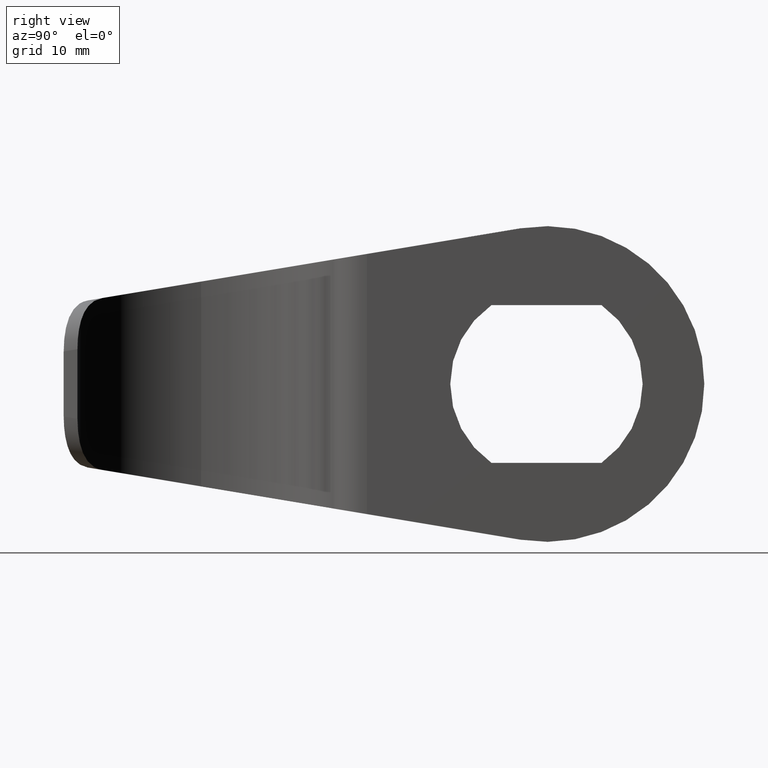
[diagram: clean part render]
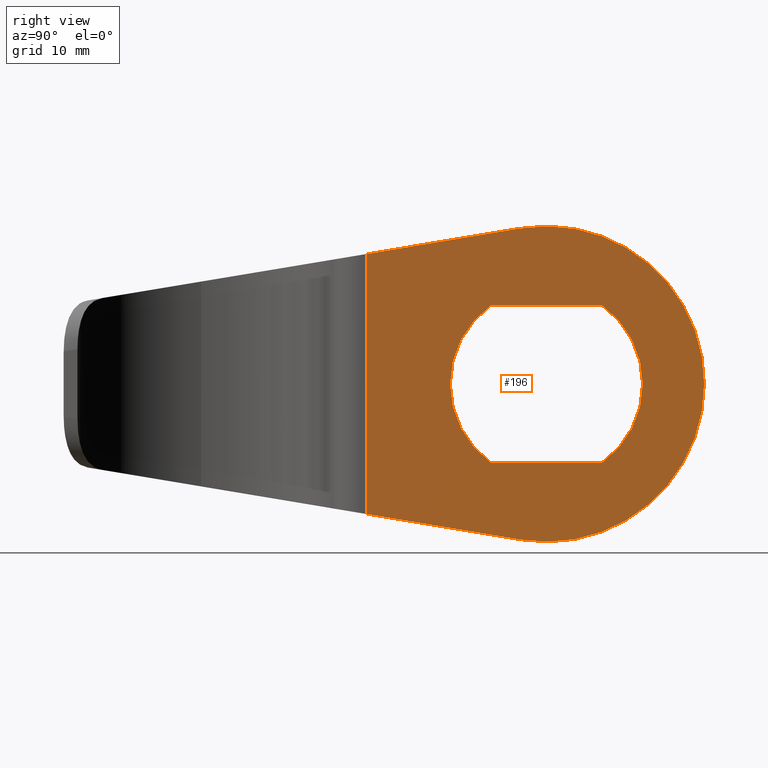
[diagram: same view with one face highlighted and labeled with its STEP entity id]
A machine part, right view. The second image highlights one B-rep face of the part: STEP entity #196.
In plain terms, the highlighted planar face has unit normal (-1, 0, 0).
Its self-contained STEP definition (entity closure, byte-faithful):
#3 = DIRECTION ( 'NONE',  ( 1.000000000000000000, 0.0000000000000000000, -0.0000000000000000000 ) ) ;
#24 = CARTESIAN_POINT ( 'NONE',  ( 1.001206748977360400, 40.57333792524997300, -8.000000000000000000 ) ) ;
#31 = CARTESIAN_POINT ( 'NONE',  ( 1.001206748977360400, 34.99996372284798700, 0.0000000000000000000 ) ) ;
#37 = CARTESIAN_POINT ( 'NONE',  ( 1.001206748977360400, 32.36721305702062100, 15.78190812074337000 ) ) ;
#39 = AXIS2_PLACEMENT_3D ( 'NONE', #31, #389, #726 ) ;
#48 = DIRECTION ( 'NONE',  ( -0.0000000000000000000, -0.0000000000000000000, -1.000000000000000000 ) ) ;
#53 = EDGE_CURVE ( 'NONE', #220, #263, #595, .T. ) ;
#65 = CARTESIAN_POINT ( 'NONE',  ( 1.001206748977360400, 40.57333792524997300, -8.000000000000000000 ) ) ;
#68 = PLANE ( 'NONE',  #125 ) ;
#80 = FACE_BOUND ( 'NONE', #462, .T. ) ;
#86 = ORIENTED_EDGE ( 'NONE', *, *, #643, .T. ) ;
#89 = DIRECTION ( 'NONE',  ( 0.0000000000000000000, 0.9863692575464607600, -0.1645469166142101700 ) ) ;
#92 = EDGE_LOOP ( 'NONE', ( #554, #86, #100, #399, #557 ) ) ;
#100 = ORIENTED_EDGE ( 'NONE', *, *, #397, .T. ) ;
#115 = CARTESIAN_POINT ( 'NONE',  ( 1.001206748977360400, 50.99996372284798700, 0.0000000000000000000 ) ) ;
#121 = CARTESIAN_POINT ( 'NONE',  ( 1.001206748977360400, 29.42658952044599400, 8.000000000000000000 ) ) ;
#125 = AXIS2_PLACEMENT_3D ( 'NONE', #528, #696, #641 ) ;
#134 = DIRECTION ( 'NONE',  ( 0.0000000000000000000, 1.734723475976807100E-015, 1.000000000000000000 ) ) ;
#154 = CARTESIAN_POINT ( 'NONE',  ( 1.001206748977360400, 16.81535115381116800, 13.18753395082193900 ) ) ;
#184 = EDGE_CURVE ( 'NONE', #263, #267, #539, .T. ) ;
#192 = CARTESIAN_POINT ( 'NONE',  ( 1.001206748977360400, 16.81535115381116800, -13.18753395082193900 ) ) ;
#196 = ADVANCED_FACE ( 'NONE', ( #80, #404 ), #68, .F. ) ;
#211 = AXIS2_PLACEMENT_3D ( 'NONE', #350, #409, #368 ) ;
#220 = VERTEX_POINT ( 'NONE', #531 ) ;
#249 = EDGE_CURVE ( 'NONE', #514, #220, #661, .T. ) ;
#252 = ORIENTED_EDGE ( 'NONE', *, *, #184, .F. ) ;
#254 = CARTESIAN_POINT ( 'NONE',  ( 1.001206748977360400, 40.57333792524997300, 8.000000000000000000 ) ) ;
#255 = CARTESIAN_POINT ( 'NONE',  ( 1.001206748977360400, 34.99996372284798700, 0.0000000000000000000 ) ) ;
#263 = VERTEX_POINT ( 'NONE', #65 ) ;
#267 = VERTEX_POINT ( 'NONE', #254 ) ;
#269 = VECTOR ( 'NONE', #89, 1000.000000000000000 ) ;
#270 = VERTEX_POINT ( 'NONE', #347 ) ;
#287 = ORIENTED_EDGE ( 'NONE', *, *, #407, .F. ) ;
#293 = CARTESIAN_POINT ( 'NONE',  ( 1.001206748977360400, 16.81535115381116400, 16.00000000000000000 ) ) ;
#315 = EDGE_CURVE ( 'NONE', #589, #323, #351, .T. ) ;
#323 = VERTEX_POINT ( 'NONE', #37 ) ;
#324 = EDGE_CURVE ( 'NONE', #589, #741, #492, .T. ) ;
#347 = CARTESIAN_POINT ( 'NONE',  ( 1.001206748977360400, 32.36721305702062100, -15.78190812074337000 ) ) ;
#350 = CARTESIAN_POINT ( 'NONE',  ( 1.001206748977360400, 34.99996372284798700, 0.0000000000000000000 ) ) ;
#351 = LINE ( 'NONE', #571, #614 ) ;
#358 = DIRECTION ( 'NONE',  ( 0.0000000000000000000, 0.0000000000000000000, 1.000000000000000000 ) ) ;
#368 = DIRECTION ( 'NONE',  ( 0.0000000000000000000, 0.0000000000000000000, -1.000000000000000000 ) ) ;
#383 = EDGE_CURVE ( 'NONE', #741, #270, #417, .T. ) ;
#389 = DIRECTION ( 'NONE',  ( 1.000000000000000000, -0.0000000000000000000, -0.0000000000000000000 ) ) ;
#397 = EDGE_CURVE ( 'NONE', #618, #323, #583, .T. ) ;
#399 = ORIENTED_EDGE ( 'NONE', *, *, #315, .F. ) ;
#404 = FACE_OUTER_BOUND ( 'NONE', #92, .T. ) ;
#407 = EDGE_CURVE ( 'NONE', #267, #514, #652, .T. ) ;
#409 = DIRECTION ( 'NONE',  ( 1.000000000000000000, 0.0000000000000000000, 0.0000000000000000000 ) ) ;
#415 = CARTESIAN_POINT ( 'NONE',  ( 1.001206748977360400, 34.99996372284798700, 0.0000000000000000000 ) ) ;
#417 = LINE ( 'NONE', #718, #269 ) ;
#419 = ORIENTED_EDGE ( 'NONE', *, *, #53, .F. ) ;
#444 = CARTESIAN_POINT ( 'NONE',  ( 1.001206748977360400, 40.57333792524997300, 8.000000000000000000 ) ) ;
#447 = DIRECTION ( 'NONE',  ( 0.0000000000000000000, -1.000000000000000000, 0.0000000000000000000 ) ) ;
#462 = EDGE_LOOP ( 'NONE', ( #287, #252, #419, #489 ) ) ;
#465 = VECTOR ( 'NONE', #549, 1000.000000000000000 ) ;
#474 = CIRCLE ( 'NONE', #738, 16.00000000000000000 ) ;
#489 = ORIENTED_EDGE ( 'NONE', *, *, #249, .F. ) ;
#492 = LINE ( 'NONE', #293, #602 ) ;
#514 = VERTEX_POINT ( 'NONE', #121 ) ;
#515 = DIRECTION ( 'NONE',  ( 0.0000000000000000000, 0.9863692575464607600, 0.1645469166142101700 ) ) ;
#528 = CARTESIAN_POINT ( 'NONE',  ( 1.001206748977360400, 16.81535115381116400, 16.00000000000000000 ) ) ;
#531 = CARTESIAN_POINT ( 'NONE',  ( 1.001206748977360400, 29.42658952044599400, -7.999999999999998200 ) ) ;
#539 = CIRCLE ( 'NONE', #558, 9.750000000000000000 ) ;
#549 = DIRECTION ( 'NONE',  ( -0.0000000000000000000, 1.000000000000000000, -0.0000000000000000000 ) ) ;
#554 = ORIENTED_EDGE ( 'NONE', *, *, #383, .T. ) ;
#557 = ORIENTED_EDGE ( 'NONE', *, *, #324, .T. ) ;
#558 = AXIS2_PLACEMENT_3D ( 'NONE', #415, #3, #358 ) ;
#571 = CARTESIAN_POINT ( 'NONE',  ( 1.001206748977360400, -14.28109305101088500, 8.000000000000000000 ) ) ;
#583 = CIRCLE ( 'NONE', #39, 16.00000000000000000 ) ;
#589 = VERTEX_POINT ( 'NONE', #154 ) ;
#595 = LINE ( 'NONE', #24, #465 ) ;
#602 = VECTOR ( 'NONE', #48, 1000.000000000000000 ) ;
#614 = VECTOR ( 'NONE', #515, 1000.000000000000000 ) ;
#618 = VERTEX_POINT ( 'NONE', #115 ) ;
#641 = DIRECTION ( 'NONE',  ( 0.0000000000000000000, 0.0000000000000000000, 1.000000000000000000 ) ) ;
#643 = EDGE_CURVE ( 'NONE', #270, #618, #474, .T. ) ;
#652 = LINE ( 'NONE', #444, #743 ) ;
#661 = CIRCLE ( 'NONE', #211, 9.750000000000000000 ) ;
#696 = DIRECTION ( 'NONE',  ( -1.000000000000000000, 0.0000000000000000000, 0.0000000000000000000 ) ) ;
#718 = CARTESIAN_POINT ( 'NONE',  ( 1.001206748977360400, -14.28109305101088500, -8.000000000000000000 ) ) ;
#726 = DIRECTION ( 'NONE',  ( 0.0000000000000000000, 0.0000000000000000000, 1.000000000000000000 ) ) ;
#738 = AXIS2_PLACEMENT_3D ( 'NONE', #255, #750, #134 ) ;
#741 = VERTEX_POINT ( 'NONE', #192 ) ;
#743 = VECTOR ( 'NONE', #447, 1000.000000000000000 ) ;
#750 = DIRECTION ( 'NONE',  ( 1.000000000000000000, -0.0000000000000000000, -0.0000000000000000000 ) ) ;